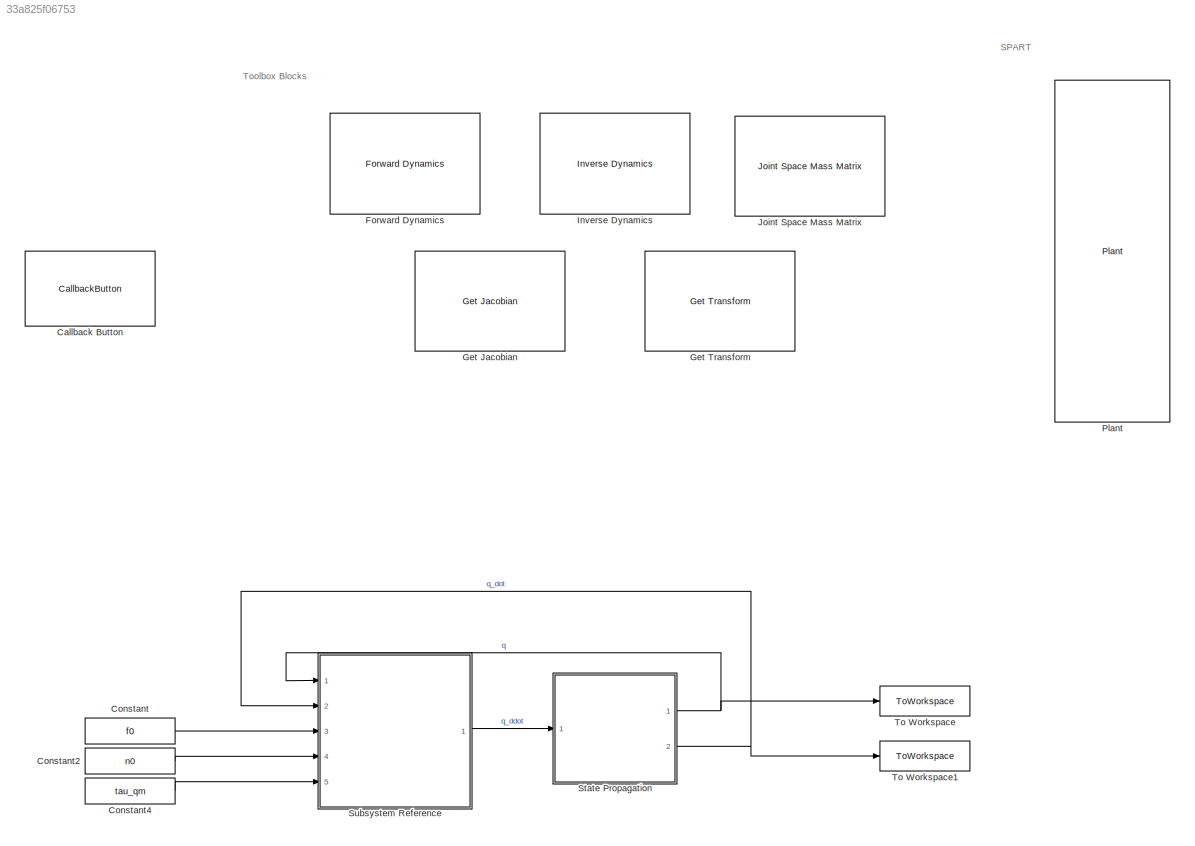
MODEL slx_33a825f06753
KIND model
CONFIG AbsTol = auto
CONFIG EnableMultiTasking = off
CONFIG FixedStep = auto
CONFIG MaxStep = auto
CONFIG MinStep = auto
CONFIG RelTol = 1e-3
CONFIG SampleTimeConstraint = Unconstrained
CONFIG SolverName = VariableStepAuto
CONFIG StartTime = 0.0
CONFIG StopTime = 10
BLOCK [CallbackButton] Callback Button
  ButtonText = Load SpaceRobot
  ClickFcn = load('SC_2DoF.mat')
BLOCK [Constant] Constant
  Value = f0
BLOCK [Constant] Constant2
  Value = n0
BLOCK [Constant] Constant4
  Value = tau_qm
BLOCK [Reference] Forward Dynamics  REF=robotmaniplib/Forward Dynamics
  Commented = on
  Ports = [4, 1]
  SourceBlock = robotmaniplib/Forward Dynamics
  SourceProductBaseCode = RO
  SourceType = Forward Dynamics
BLOCK [Reference] Get Jacobian  REF=robotmaniplib/Get Jacobian
  Commented = on
  Ports = [1, 1]
  SourceBlock = robotmaniplib/Get Jacobian
  SourceProductBaseCode = RO
  SourceType = Get Jacobian
BLOCK [Reference] Get Transform  REF=robotmaniplib/Get Transform
  Commented = on
  Ports = [1, 1]
  SourceBlock = robotmaniplib/Get Transform
  SourceProductBaseCode = RO
  SourceType = Get Transform
BLOCK [Reference] Inverse Dynamics  REF=robotmaniplib/Inverse Dynamics
  Commented = on
  Ports = [4, 1]
  SourceBlock = robotmaniplib/Inverse Dynamics
  SourceProductBaseCode = RO
  SourceType = Inverse Dynamics
BLOCK [Reference] Joint Space Mass Matrix  REF=robotmaniplib/Joint Space Mass Matrix
  Commented = on
  Ports = [1, 1]
  SourceBlock = robotmaniplib/Joint Space Mass Matrix
  SourceProductBaseCode = RO
  SourceType = Joint Space Mass Matrix
BLOCK [Reference] Plant  REF=SPART_Lib/Plant
  Commented = on
  Ports = [2, 21]
  SourceBlock = SPART_Lib/Plant
  SourceType = SubSystem
BLOCK [SubSystem] State Propagation
  Ports = [1, 2]
  ReferencedSubsystem = StatePropagation
  RequestExecContextInheritance = off
  spaceRobot = sc
BLOCK [SubSystem] Subsystem Reference
  Ports = [5, 1]
  ReferencedSubsystem = ForwardDynamics
  RequestExecContextInheritance = off
  SimulateUsing = Interpreted execution
  spaceRobot = sc
BLOCK [ToWorkspace] To Workspace
  FixptAsFi = on
  MaxDataPoints = inf
  Ports = [1]
  SampleTime = -1
  SaveFormat = Timeseries
  VariableName = q
BLOCK [ToWorkspace] To Workspace1
  FixptAsFi = on
  MaxDataPoints = inf
  Ports = [1]
  SampleTime = -1
  SaveFormat = Timeseries
  VariableName = q_dot
ANNOTATION (root): SPART
ANNOTATION (root): Toolbox Blocks
LINE Constant2:1 -> Subsystem Reference:4
LINE Constant4:1 -> Subsystem Reference:5
LINE Constant:1 -> Subsystem Reference:3
NET State Propagation:1 -> Subsystem Reference:1, To Workspace:1
NET State Propagation:2 -> Subsystem Reference:2, To Workspace1:1
LINE Subsystem Reference:1 -> State Propagation:1
note: NET lines group one-source signal fan-out (src -> all destinations, sorted); 1:1 wires keep LINE
